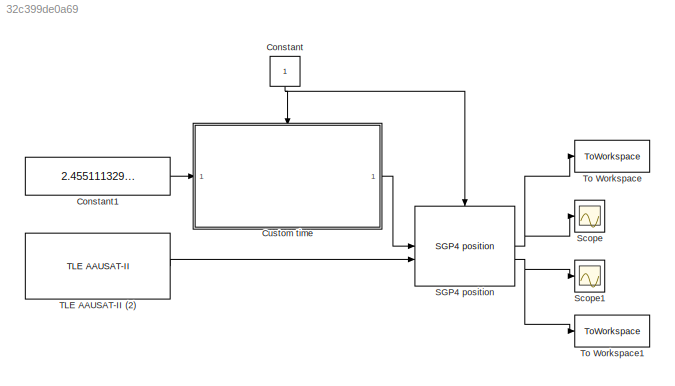
MODEL mdl_32c399de0a69
KIND model
CONFIG AbsTol = auto
CONFIG EnableMultiTasking = on
CONFIG FixedStep = 0.1
CONFIG MaxStep = 1
CONFIG MinStep = auto
CONFIG RelTol = 1e-3
CONFIG SampleTimeConstraint = Unconstrained
CONFIG SolverName = ode45
CONFIG StartTime = 0.0
CONFIG StopTime = 604800
BLOCK [Constant] Constant
  NameLocation = left
BLOCK [Constant] Constant1
  Value = 2.455111329137370e6
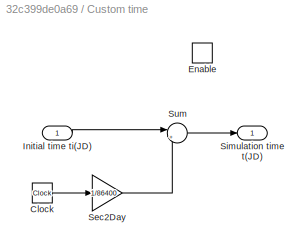
BLOCK [SubSystem] Custom time
  AncestorBlock = aausat3_lib/Orbit and Ephemeris/Custom time
  TreatAsAtomicUnit = on
BLOCK [Clock] Custom time/Clock
BLOCK [EnablePort] Custom time/Enable
BLOCK [Inport] Custom time/Initial time ti(JD)
BLOCK [Gain] Custom time/Sec2Day
  Gain = 1/86400
  OutDataTypeStr = Inherit: Same as input
  ParamDataTypeStr = Inherit: Same as input
  SaturateOnIntegerOverflow = on
BLOCK [Outport] Custom time/Simulation time t(JD)
BLOCK [Sum] Custom time/Sum
  Inputs = |++
BLOCK [Reference] SGP4 position  REF=aausat3_lib/Orbit and Ephemeris/SGP4 position  (lib defined in mdl_4157f6465749, slx_d9305f96731e)
  SourceBlock = aausat3_lib/Orbit and Ephemeris/SGP4 position
  SourceProductName = AAUSAT3
  SourceType = SubSystem
BLOCK [Scope] Scope
  Floating = off
  NumInputPorts = 1
  ScopeSpecificationString = Simulink.scopes.TimeScopeBlockCfg('CurrentConfiguration', extmgr.ConfigurationSet(extmgr.Configuration('Core','General UI',true),extmgr.Configuration('Core','Source UI',true),extmgr.Configuration('Sources','WiredSimulink',true,'DataLoggingSaveFormat','StructureWithTime','DataLoggingDecimation','1','DataLoggingDecimateData',true),extmgr.Configuration('Visuals','Time Domain',true,'SerializedDisplays...<+1702ch>
BLOCK [Scope] Scope1
  Floating = off
  NumInputPorts = 1
  ScopeSpecificationString = Simulink.scopes.TimeScopeBlockCfg('CurrentConfiguration', extmgr.ConfigurationSet(extmgr.Configuration('Core','General UI',true),extmgr.Configuration('Core','Source UI',true),extmgr.Configuration('Sources','WiredSimulink',true,'DataLoggingVariableName','ScopeData1','DataLoggingSaveFormat','StructureWithTime','DataLoggingDecimation','1','DataLoggingDecimateData',true),extmgr.Configuration('Visuals'...<+1713ch>
BLOCK [Reference] TLE AAUSAT-II (2)  REF=aausat3_lib/Orbit and Ephemeris/TLE AAUSAT-II  (lib defined in mdl_4157f6465749, slx_d9305f96731e)
  SourceBlock = aausat3_lib/Orbit and Ephemeris/TLE AAUSAT-II
  SourceProductName = AAUSAT3
BLOCK [ToWorkspace] To Workspace
  MaxDataPoints = inf
  SampleTime = -1
  VariableName = position_sgp4
BLOCK [ToWorkspace] To Workspace1
  MaxDataPoints = inf
  SampleTime = -1
  VariableName = velocity_sgp4
LINE Constant1:1 -> Custom time:1
NET Constant:1 -> Custom time:enable, SGP4 position:enable
LINE Custom time:1 -> SGP4 position:1
NET SGP4 position:1 -> Scope:1, To Workspace:1
NET SGP4 position:2 -> Scope1:1, To Workspace1:1
LINE TLE AAUSAT-II (2):1 -> SGP4 position:2
note: NET lines group one-source signal fan-out (src -> all destinations, sorted); 1:1 wires keep LINE
